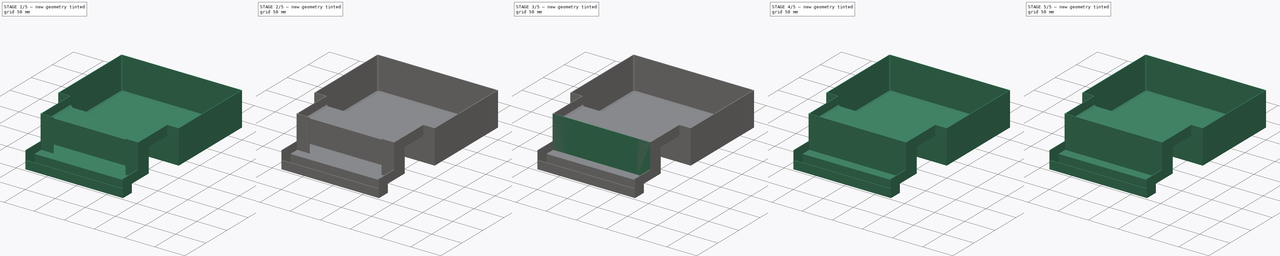
[diagram: build sequence overview — one tinted view per stage of 5, left to right]
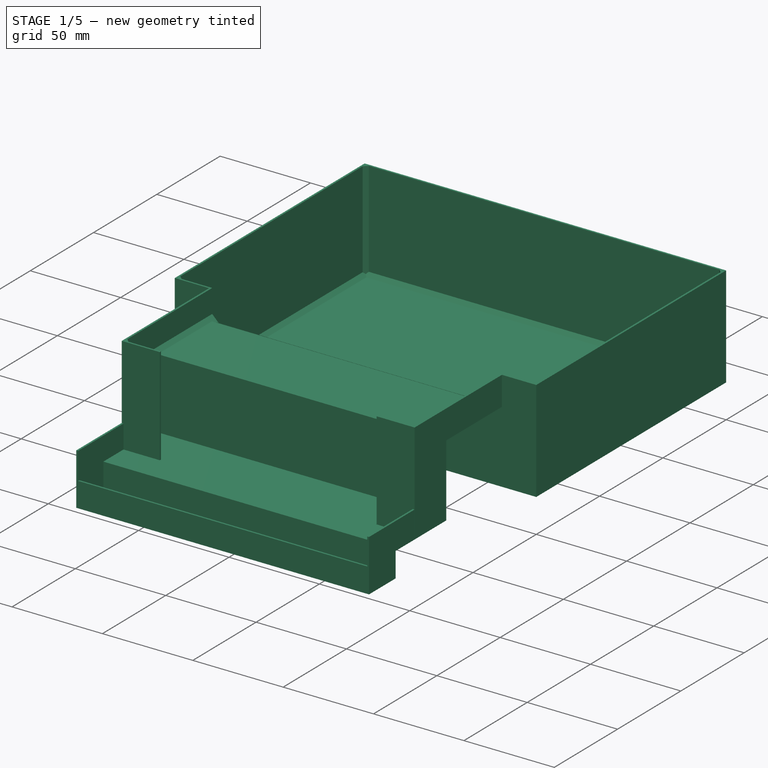
[diagram: stage 1 of 5 — iso view after this stage's code; geometry added in this stage tinted green]
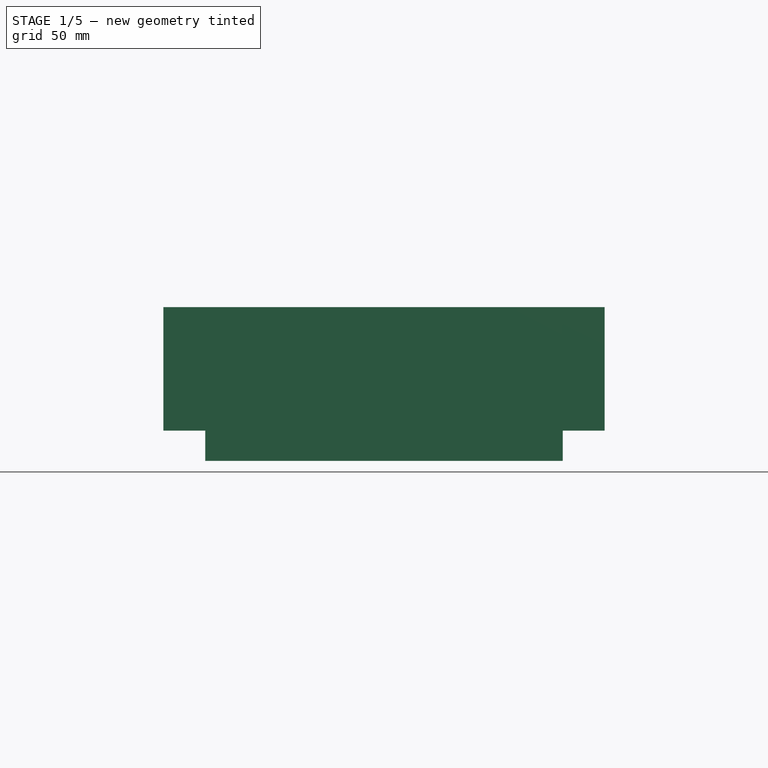
[diagram: stage 1 of 5 — front view after this stage's code; geometry added in this stage tinted green]
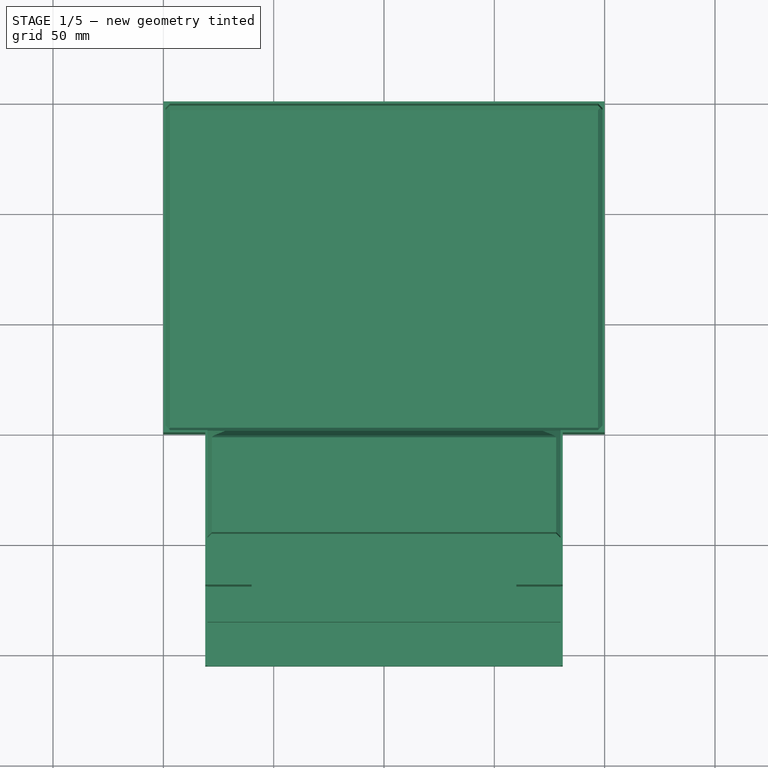
[diagram: stage 1 of 5 — top view after this stage's code; geometry added in this stage tinted green]
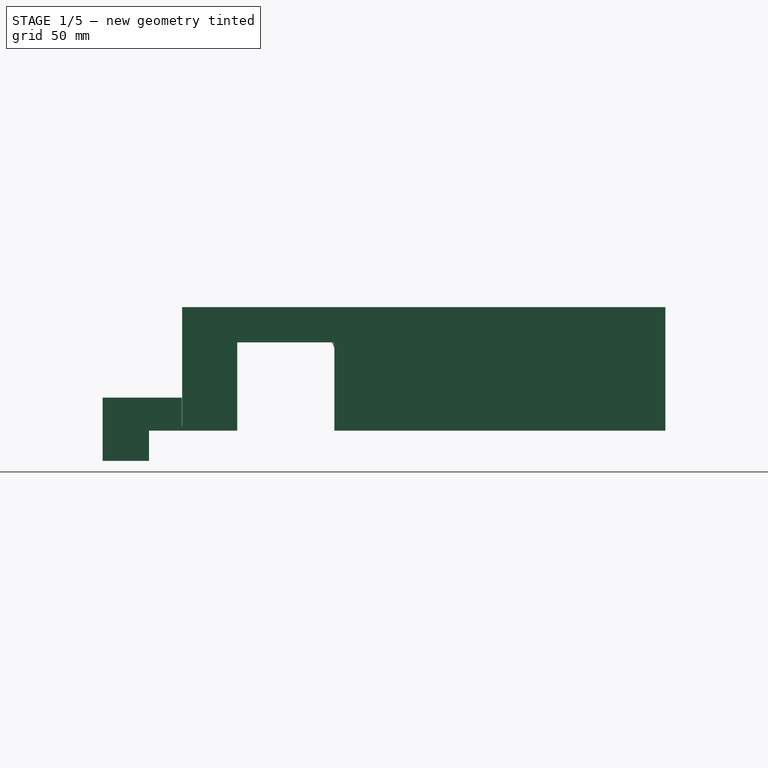
[diagram: stage 1 of 5 — right view after this stage's code; geometry added in this stage tinted green]
FCSTD DOCUMENT  (FreeCAD 0.18R16117 (Git))
Label: gotero
License: CreativeCommons Attribution-ShareAlike
LicenseURL: http://creativecommons.org/licenses/by-sa/4.0/
objects: Part::Box×27, Part::MultiFuse×24, Part::Chamfer×21, Part::Feature×10, Part::Cut×6, Part::Extrusion×3, Sketcher::SketchObject×2, Part::Part2DObjectPython×1
note: 94 computed .brp shape members not serialized (recipe doc carries the construction recipe); baked Part::Feature solids carry a one-line shape summary decoded from their .brp

FEATURE [Part::Box] Box020  label="Cube020"
  AttacherType = Attacher::AttachEngine3D
  Height = 1
  Length = 160
  Placement = pos=(20,-68,1) rot=(0,0,1;0rad)
  Width = 23
FEATURE [Part::Box] Box021  label="Cube021"
  AttacherType = Attacher::AttachEngine3D
  Height = 1
  Length = 159.8
  Placement = pos=(20.1,-67.9,1) rot=(0,0,1;0rad)
  Width = 22.8
FEATURE [Part::Cut] Cut002  label="el_principal"
  Base = -> Chamfer017004001
  Tool = -> Box020
FEATURE [Part::Box] Box022  label="Cube022"
  AttacherType = Attacher::AttachEngine3D
  Height = 1
  Length = 159.8
  Placement = pos=(20.1,-67.9,0) rot=(0,0,1;0rad)
  Width = 22.8
FEATURE [Part::Feature] Cut002001  label="Cut003"
  shape: bbox 200 x 219 x 56 mm, 55 faces (baked)
FEATURE [Part::Cut] Cut002002
  Base = -> Box022
  Tool = -> Cut002001
FEATURE [Part::Box] Box023  label="Cube023"
  AttacherType = Attacher::AttachEngine3D
  Height = 1
  Length = 119.8
  Placement = pos=(40.1,-75,1) rot=(0,0,1;0rad)
  Width = 10
FEATURE [Part::Box] Box024  label="Cube024"
  AttacherType = Attacher::AttachEngine3D
  Height = 1
  Length = 162
  Placement = pos=(19,-85,1) rot=(0,0,1;0rad)
  Width = 15.9
FEATURE [Part::Feature] Fusion005009008001  label="Fusion005009009"
  shape: bbox 162 x 59.9 x 15.7 mm, 27 faces (baked)
FEATURE [Sketcher::SketchObject] Sketch
  ExternalGeometry = -> [Cut002,Fusion005009008001]
  Placement = pos=(0,0,0) rot=(0.57735,0.57735,0.57735;2.0944rad)
  sketch-geometry (6):
    g0: LineSegment StartX=-69.1 StartY=0 StartZ=0 EndX=-84 EndY=0 EndZ=0
    g1: LineSegment StartX=-84 StartY=0 StartZ=0 EndX=-84 EndY=-13.7 EndZ=0
    g2: LineSegment StartX=-84 StartY=-13.7 StartZ=0 EndX=-105 EndY=-13.7 EndZ=0
    g3: LineSegment StartX=-105 StartY=-13.7 StartZ=0 EndX=-105 EndY=15 EndZ=0
    g4: LineSegment StartX=-105 StartY=15 StartZ=0 EndX=-69.1 EndY=15 EndZ=0
    g5: LineSegment StartX=-69.1 StartY=15 StartZ=0 EndX=-69.1 EndY=0 EndZ=0
  constraints (18):
    c: PointOnObject(g0,g-1)
    c: PointOnObject(g0,g-1)
    c: Coincident(g0,g1)
    c: Coincident(g1,g2)
    c: Horizontal(g2)
    c: Coincident(g2,g3)
    c: Vertical(g3)
    c: Coincident(g3,g4)
    c: Horizontal(g4)
    c: Coincident(g4,g5)
    c: Vertical(g5)
    c: Vertical(g1)
    c: Coincident(g0,g5)
    c: DistanceX(g3,g-4) = 1
    c: DistanceY(g2,g-4) = 1
    c: DistanceX(g-4,g1) = 20
    c: DistanceX(g-4,g4) = 34.9
    c: DistanceY(g-4,g4) = 15
FEATURE [Part::Extrusion] Extrude001
  Base = -> Sketch
  Dir = (1,0,0)
  DirMode = 2
  FaceMakerClass = Part::FaceMakerBullseye
  LengthFwd = 1
  LengthRev = 0
  Placement = pos=(19,0,0) rot=(0,0,1;0rad)
  Solid = true
  Symmetric = false
FEATURE [Part::Feature] Chamfer017004002  label="Chamfer017006"
  shape: bbox 200 x 219 x 56 mm, 49 faces (baked)
FEATURE [Part::Feature] Fusion005009008002  label="Fusion005009010"
  shape: bbox 162 x 59.9 x 15.7 mm, 27 faces (baked)
FEATURE [Part::Box] Box025  label="Cube025"
  AttacherType = Attacher::AttachEngine3D
  Height = 1
  Length = 160
  Placement = pos=(20,-68,1) rot=(0,0,1;0rad)
  Width = 23
FEATURE [Part::Cut] Cut002003  label="el_principal_refinado"
  Base = -> Chamfer017004002
  Tool = -> Box025
FEATURE [Sketcher::SketchObject] Sketch001
  ExternalGeometry = -> [Cut002003,Fusion005009008002]
  Placement = pos=(0,0,0) rot=(0.57735,0.57735,0.57735;2.0944rad)
  sketch-geometry (6):
    g0: LineSegment StartX=-69.1 StartY=0 StartZ=0 EndX=-84 EndY=0 EndZ=0
    g1: LineSegment StartX=-84 StartY=0 StartZ=0 EndX=-84 EndY=-13.7 EndZ=0
    g2: LineSegment StartX=-84 StartY=-13.7 StartZ=0 EndX=-105 EndY=-13.7 EndZ=0
    g3: LineSegment StartX=-105 StartY=-13.7 StartZ=0 EndX=-105 EndY=15 EndZ=0
    g4: LineSegment StartX=-105 StartY=15 StartZ=0 EndX=-69.1 EndY=15 EndZ=0
    g5: LineSegment StartX=-69.1 StartY=15 StartZ=0 EndX=-69.1 EndY=0 EndZ=0
  constraints (18):
    c: PointOnObject(g0,g-1)
    c: PointOnObject(g0,g-1)
    c: Coincident(g0,g1)
    c: Coincident(g1,g2)
    c: Horizontal(g2)
    c: Coincident(g2,g3)
    c: Vertical(g3)
    c: Coincident(g3,g4)
    c: Horizontal(g4)
    c: Coincident(g4,g5)
    c: Vertical(g5)
    c: Vertical(g1)
    c: Coincident(g0,g5)
    c: DistanceX(g3,g-4) = 1
    c: DistanceY(g2,g-4) = 1
    c: DistanceX(g-4,g1) = 20
    c: DistanceX(g-4,g4) = 34.9
    c: DistanceY(g-4,g4) = 15
FEATURE [Part::Extrusion] Extrude002
  Base = -> Sketch001
  Dir = (1,0,0)
  DirMode = 2
  FaceMakerClass = Part::FaceMakerBullseye
  LengthFwd = 1
  LengthRev = 0
  Placement = pos=(180,0,0) rot=(0,0,1;0rad)
  Solid = true
  Symmetric = false
FEATURE [Part::MultiFuse] Fusion005009008003
  Shapes = -> [Fusion005009008001,Fusion005009008002]
FEATURE [Part::MultiFuse] Fusion005009008004
  Shapes = -> [Fusion005009008003,Extrude001]
FEATURE [Part::MultiFuse] Fusion005009008005
  Shapes = -> [Fusion005009008004,Extrude002]
FEATURE [Part::Feature] Fusion005009008005001  label="extension_refinado"
  shape: bbox 162 x 59.9 x 28.7 mm, 31 faces (baked)
FEATURE [Part::Box] Box026  label="Cube026"
  AttacherType = Attacher::AttachEngine3D
  Height = 8
  Length = 160
  Placement = pos=(20,-68,1) rot=(0,0,1;0rad)
  Width = 23
FEATURE [Part::Cut] Cut002004
  Base = -> Cut002003
  Tool = -> Box026
FEATURE [Part::Feature] Cut002004001  label="principal_refinado"
  shape: bbox 200 x 219 x 56 mm, 48 faces (baked)
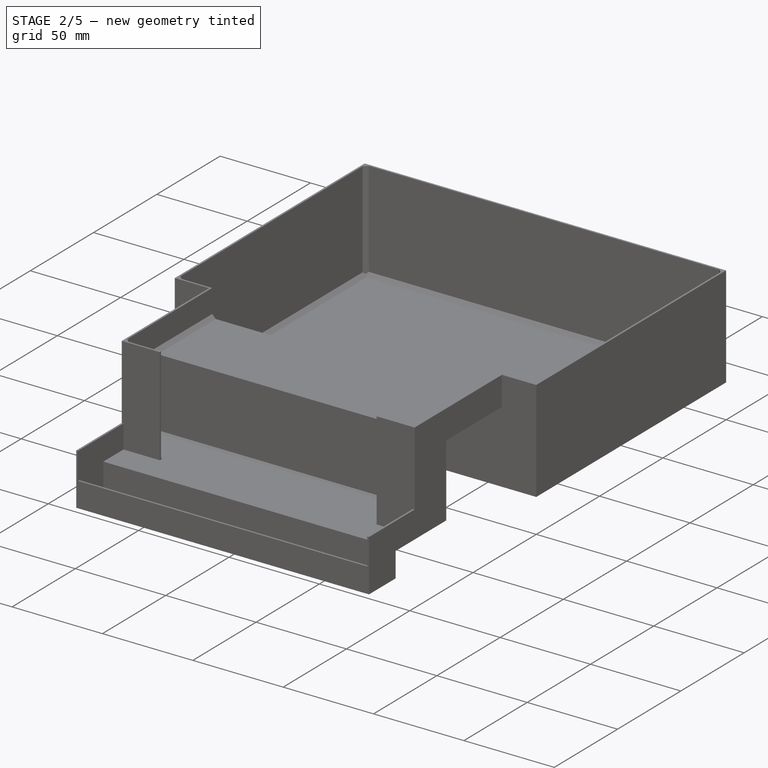
[diagram: stage 2 of 5 — iso view after this stage's code; geometry added in this stage tinted green]
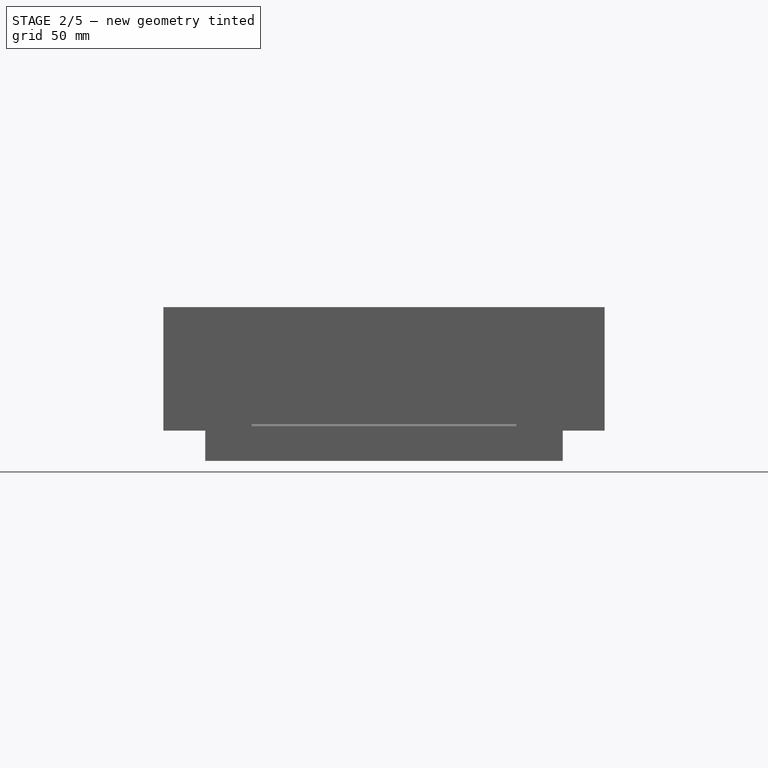
[diagram: stage 2 of 5 — front view after this stage's code; geometry added in this stage tinted green]
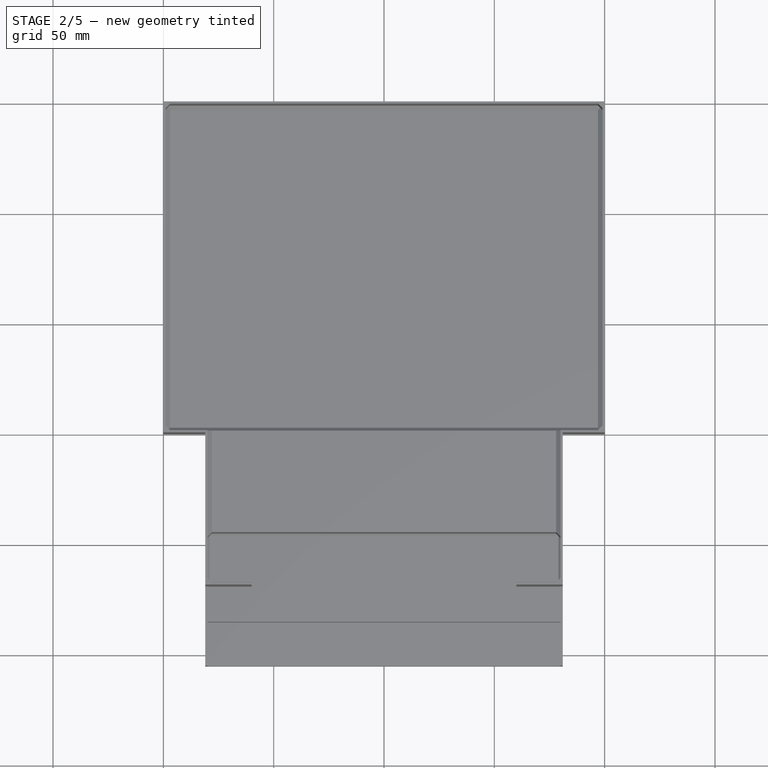
[diagram: stage 2 of 5 — top view after this stage's code; geometry added in this stage tinted green]
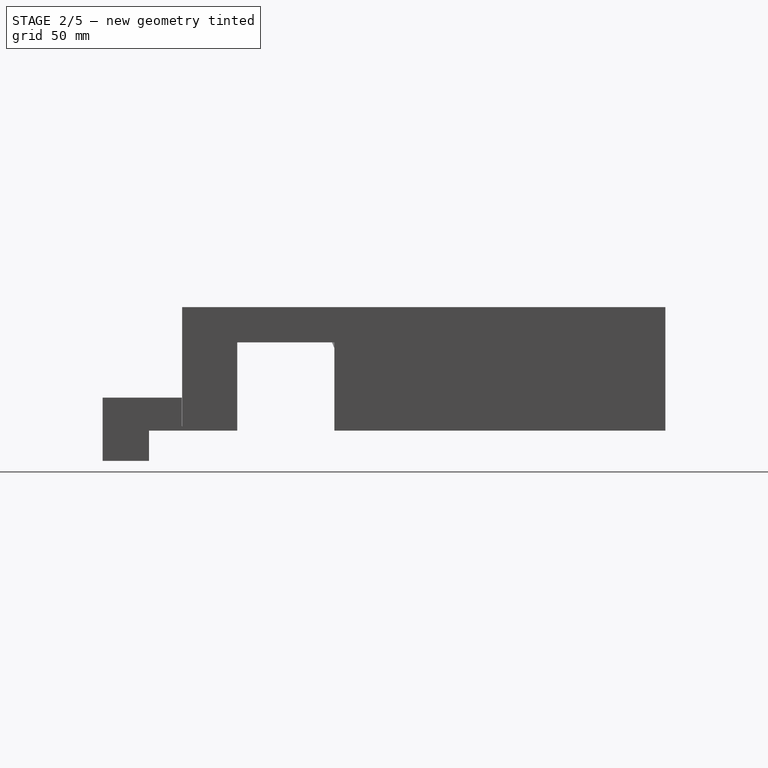
[diagram: stage 2 of 5 — right view after this stage's code; geometry added in this stage tinted green]
FEATURE [Part::Feature] Chamfer017001  label="Chamfer018"
  shape: bbox 200 x 219 x 56 mm, 41 faces (baked)
FEATURE [Part::Part2DObjectPython] Circle  # Draft 2D object (typed FeaturePython)
  FirstAngle = 0
  LastAngle = 0
  MakeFace = true
  Placement = pos=(100,-56.5,0) rot=(0.707107,0.707107,0;3.14159rad)
  Radius = 2
FEATURE [Part::Extrusion] Extrude
  Base = -> Circle
  Dir = (0,0,-1)
  DirMode = 2
  FaceMakerClass = Part::FaceMakerBullseye
  LengthFwd = 10
  LengthRev = 0
  Placement = pos=(0,0,6) rot=(0,0,1;0rad)
  Solid = true
  Symmetric = false
FEATURE [Part::Cut] Cut
  Base = -> Chamfer017001
  Tool = -> Extrude
FEATURE [Part::Chamfer] Chamfer017002
  Base = -> Cut
  Edges = 1 edges r=0.3: [Edge17]
FEATURE [Part::Box] Box015  label="Cube015"
  AttacherType = Attacher::AttachEngine3D
  Height = 65
  Length = 120
  Placement = pos=(40,-79,1) rot=(0,0,1;0rad)
  Width = 20
FEATURE [Part::Cut] Cut001
  Base = -> Chamfer017002
  Tool = -> Box015
FEATURE [Part::Feature] Chamfer017004001  label="Chamfer017005"
  shape: bbox 200 x 219 x 56 mm, 49 faces (baked)
FEATURE [Part::Box] Box016  label="Cube016"
  AttacherType = Attacher::AttachEngine3D
  Height = 1
  Length = 162
  Placement = pos=(19,-85,0) rot=(0,0,1;0rad)
  Width = 16
FEATURE [Part::Box] Box017  label="Cube017"
  AttacherType = Attacher::AttachEngine3D
  Height = 1
  Length = 162
  Placement = pos=(19,-104,-13.7) rot=(0,0,1;0rad)
  Width = 20
FEATURE [Part::Box] Box018  label="Cube018"
  AttacherType = Attacher::AttachEngine3D
  Height = 1
  Length = 162
  Placement = pos=(19,-104,-13.7) rot=(1,0,0;1.5708rad)
  Width = 13.7
FEATURE [Part::Box] Box019  label="Cube019"
  AttacherType = Attacher::AttachEngine3D
  Height = 1
  Length = 162
  Placement = pos=(19,-84,-13.7) rot=(1,0,0;1.5708rad)
  Width = 13.7
FEATURE [Part::MultiFuse] Fusion005009002
  Shapes = -> [Box016,Box019]
FEATURE [Part::MultiFuse] Fusion005009003
  Shapes = -> [Fusion005009002,Box017]
FEATURE [Part::MultiFuse] Fusion005009004
  Shapes = -> [Fusion005009003,Box018]
FEATURE [Part::MultiFuse] Fusion005009005
  Shapes = -> [Box021,Cut002002]
FEATURE [Part::MultiFuse] Fusion005009006
  Shapes = -> [Fusion005009005,Box023]
FEATURE [Part::MultiFuse] Fusion005009007
  Shapes = -> [Fusion005009006,Box024]
FEATURE [Part::MultiFuse] Fusion005009008
  Shapes = -> [Fusion005009004,Fusion005009007]
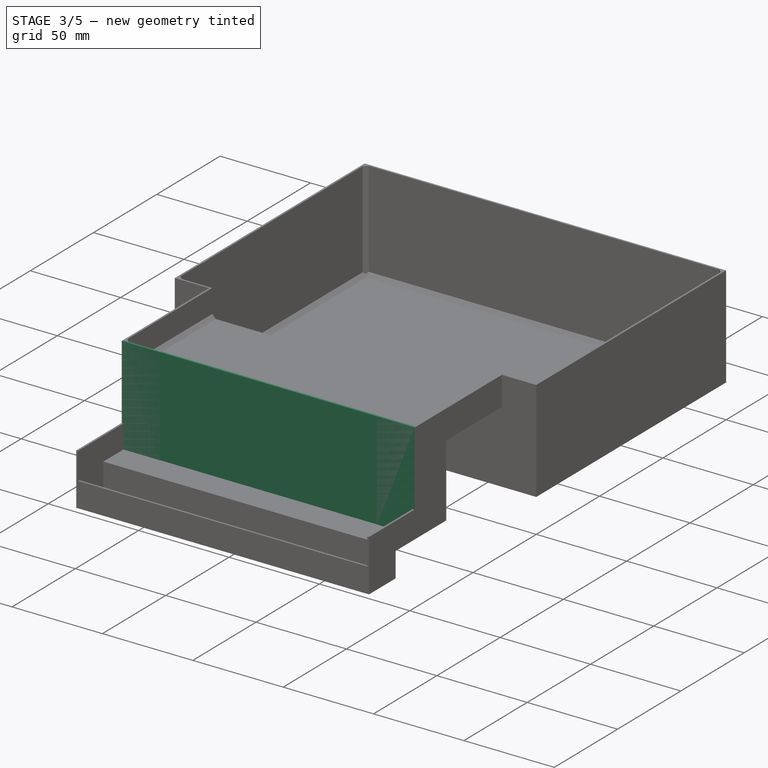
[diagram: stage 3 of 5 — iso view after this stage's code; geometry added in this stage tinted green]
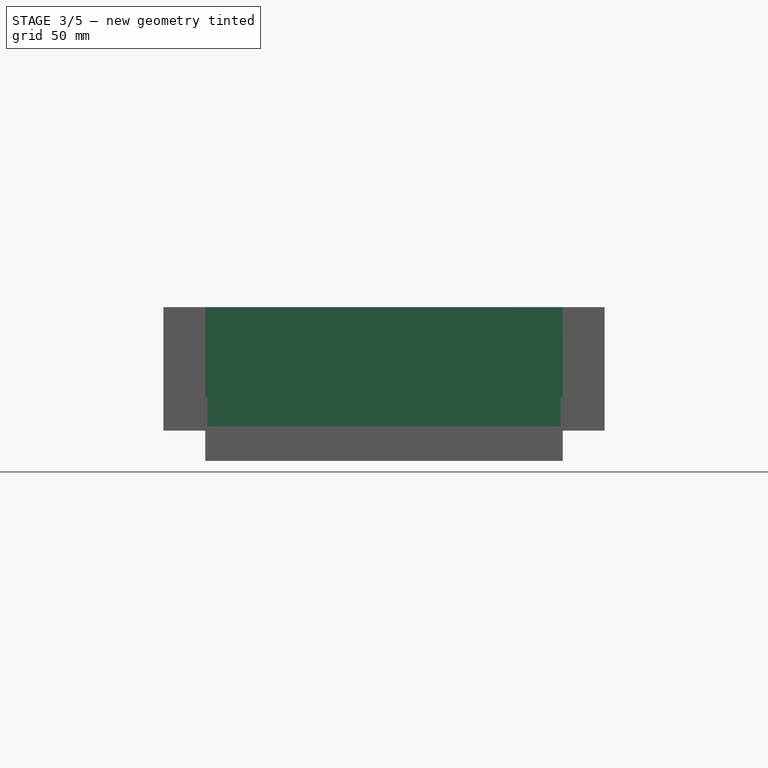
[diagram: stage 3 of 5 — front view after this stage's code; geometry added in this stage tinted green]
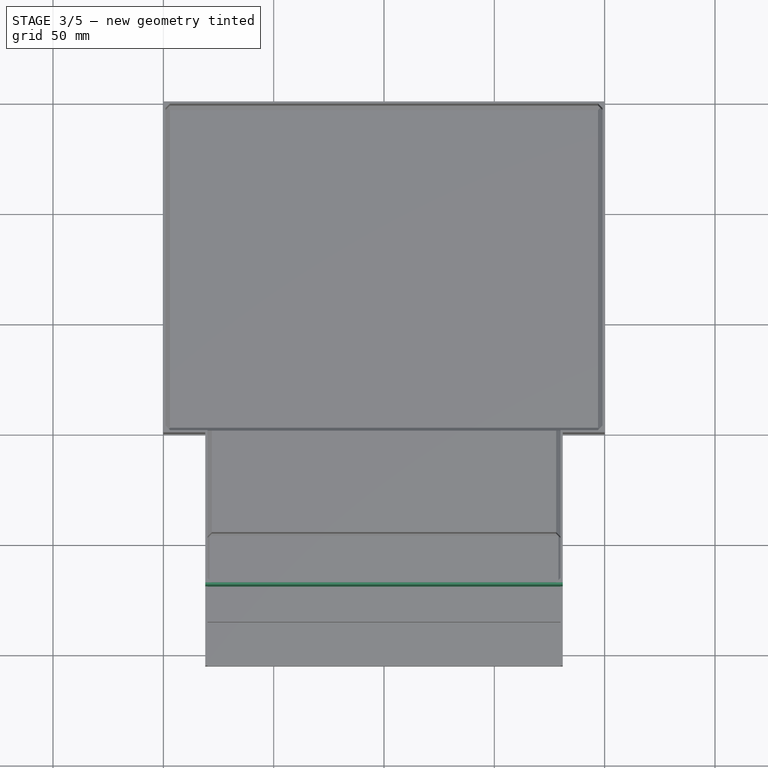
[diagram: stage 3 of 5 — top view after this stage's code; geometry added in this stage tinted green]
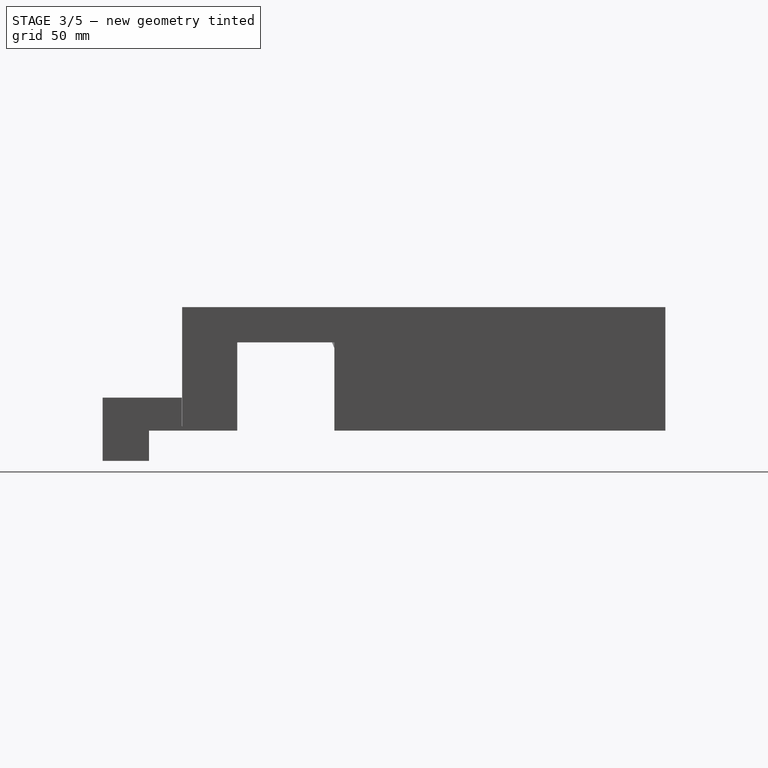
[diagram: stage 3 of 5 — right view after this stage's code; geometry added in this stage tinted green]
FEATURE [Part::Box] Box007  label="Cube007"
  AttacherType = Attacher::AttachEngine3D
  Height = 1
  Length = 162
  Placement = pos=(19,-44,40) rot=(0,0,1;0rad)
  Width = 45
FEATURE [Part::Box] Box008  label="Cube008"
  AttacherType = Attacher::AttachEngine3D
  Height = 41
  Length = 162
  Placement = pos=(19,-45,0) rot=(0,0,1;0rad)
  Width = 1
FEATURE [Part::Box] Box009  label="Cube009"
  AttacherType = Attacher::AttachEngine3D
  Height = 1
  Length = 162
  Placement = pos=(19,-69,0) rot=(0,0,1;0rad)
  Width = 25
FEATURE [Part::MultiFuse] Fusion005002
  Shapes = -> [Box008,Box007]
FEATURE [Part::Box] Box014  label="Cube014"
  AttacherType = Attacher::AttachEngine3D
  Height = 56
  Length = 162
  Placement = pos=(19,-69,0) rot=(0,0,1;0rad)
  Width = 1
FEATURE [Part::Feature] Fusion005009001  label="Fusion005010"
  shape: bbox 200 x 219 x 56 mm, 31 faces (baked)
FEATURE [Part::Chamfer] Chamfer008
  Base = -> Fusion005009001
  Edges = 1 edges r=2: [Edge75]
FEATURE [Part::Chamfer] Chamfer009
  Base = -> Chamfer008
  Edges = 1 edges r=2: [Edge8]
FEATURE [Part::Chamfer] Chamfer010
  Base = -> Chamfer009
  Edges = 1 edges r=2: [Edge18]
FEATURE [Part::Chamfer] Chamfer011
  Base = -> Chamfer010
  Edges = 1 edges r=2: [Edge46]
FEATURE [Part::Chamfer] Chamfer012
  Base = -> Chamfer011
  Edges = 1 edges r=2: [Edge23]
FEATURE [Part::Chamfer] Chamfer013
  Base = -> Chamfer012
  Edges = 1 edges r=2: [Edge32]
FEATURE [Part::Chamfer] Chamfer014
  Base = -> Chamfer013
  Edges = 1 edges r=2: [Edge39]
FEATURE [Part::Chamfer] Chamfer015
  Base = -> Chamfer014
  Edges = 1 edges r=2: [Edge23]
FEATURE [Part::Chamfer] Chamfer016
  Base = -> Chamfer015
  Edges = 1 edges r=2: [Edge20]
FEATURE [Part::Chamfer] Chamfer017
  Base = -> Chamfer016
  Edges = 1 edges r=2: [Edge29]
FEATURE [Part::Chamfer] Chamfer017003
  Base = -> Cut001
  Edges = 1 edges r=3: [Edge84]
FEATURE [Part::Chamfer] Chamfer017004
  Base = -> Chamfer017003
  Edges = 1 edges r=3: [Edge11]
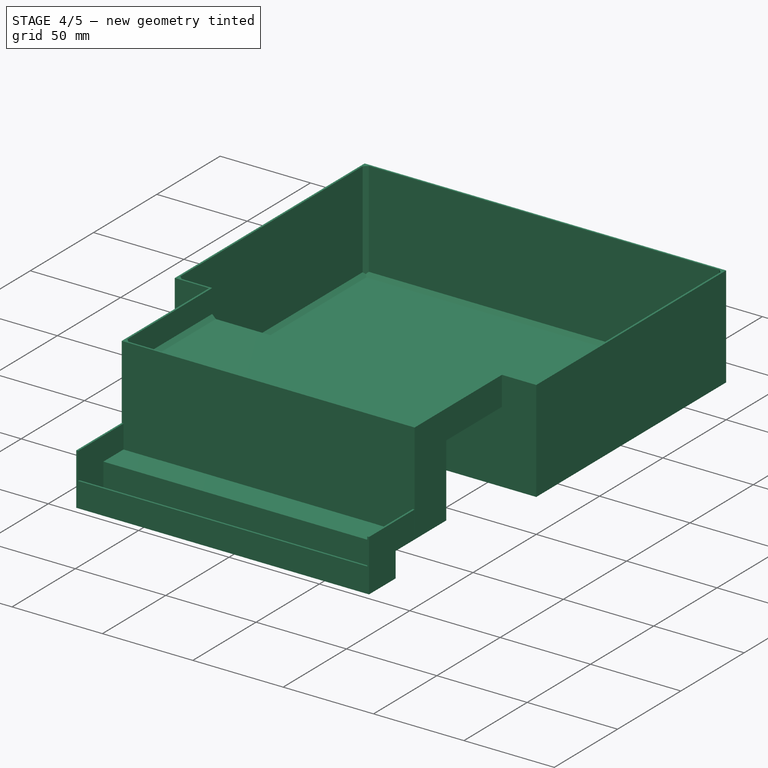
[diagram: stage 4 of 5 — iso view after this stage's code; geometry added in this stage tinted green]
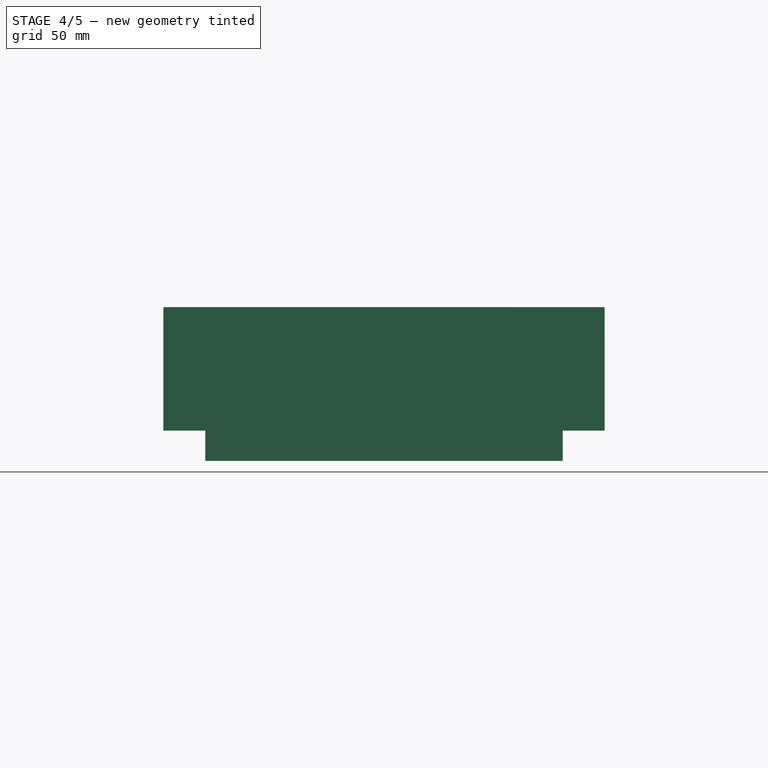
[diagram: stage 4 of 5 — front view after this stage's code; geometry added in this stage tinted green]
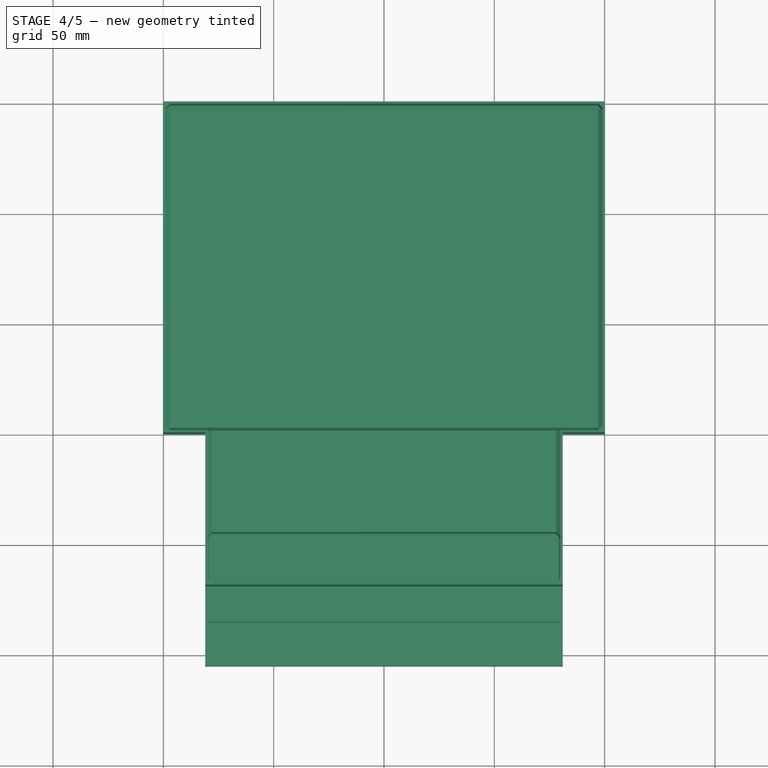
[diagram: stage 4 of 5 — top view after this stage's code; geometry added in this stage tinted green]
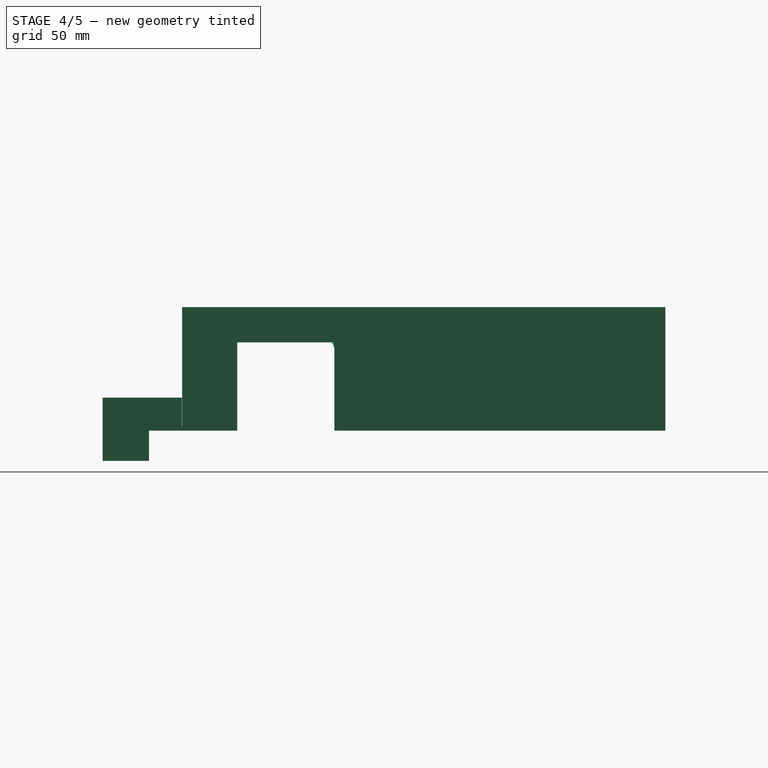
[diagram: stage 4 of 5 — right view after this stage's code; geometry added in this stage tinted green]
FEATURE [Part::Box] Box  label="Cube"
  AttacherType = Attacher::AttachEngine3D
  Height = 1
  Length = 200
  Width = 150
FEATURE [Part::Box] Box003  label="Cube003"
  AttacherType = Attacher::AttachEngine3D
  Height = 56
  Length = 200
  Placement = pos=(0,149,0) rot=(0,0,1;0rad)
  Width = 1
FEATURE [Part::Box] Box006  label="Cube006"
  AttacherType = Attacher::AttachEngine3D
  Height = 56
  Length = 20
  Placement = pos=(180,0,0) rot=(0,0,1;0rad)
  Width = 1
FEATURE [Part::Feature] Fusion005001  label="Fusion006"
  shape: bbox 200 x 150 x 56 mm, 20 faces (baked)
FEATURE [Part::Chamfer] Chamfer006
  Base = -> Fusion005001
  Edges = 1 edges r=2: [Edge9]
FEATURE [Part::Chamfer] Chamfer007
  Base = -> Chamfer006
  Edges = 1 edges r=2: [Edge10]
FEATURE [Part::MultiFuse] Fusion005003
  Shapes = -> [Fusion005002,Box009]
FEATURE [Part::Box] Box010  label="Cube010"
  AttacherType = Attacher::AttachEngine3D
  Height = 56
  Length = 1
  Placement = pos=(19,-69,0) rot=(0,0,1;0rad)
  Width = 25
FEATURE [Part::Box] Box011  label="Cube011"
  AttacherType = Attacher::AttachEngine3D
  Height = 16
  Length = 1
  Placement = pos=(19,-69,40) rot=(0,0,1;0rad)
  Width = 70
FEATURE [Part::MultiFuse] Fusion005004
  Shapes = -> [Box010,Box011]
FEATURE [Part::Box] Box012  label="Cube012"
  AttacherType = Attacher::AttachEngine3D
  Height = 56
  Length = 1
  Placement = pos=(19,-69,0) rot=(0,0,1;0rad)
  Width = 25
FEATURE [Part::Box] Box013  label="Cube013"
  AttacherType = Attacher::AttachEngine3D
  Height = 16
  Length = 1
  Placement = pos=(19,-69,40) rot=(0,0,1;0rad)
  Width = 70
FEATURE [Part::MultiFuse] Fusion005005
  Placement = pos=(161,0,0) rot=(0,0,1;0rad)
  Shapes = -> [Box012,Box013]
FEATURE [Part::MultiFuse] Fusion005006
  Shapes = -> [Chamfer007,Fusion005003]
FEATURE [Part::MultiFuse] Fusion005007
  Shapes = -> [Fusion005006,Fusion005005]
FEATURE [Part::MultiFuse] Fusion005008
  Shapes = -> [Fusion005007,Fusion005004]
FEATURE [Part::MultiFuse] Fusion005009
  Shapes = -> [Fusion005008,Box014]
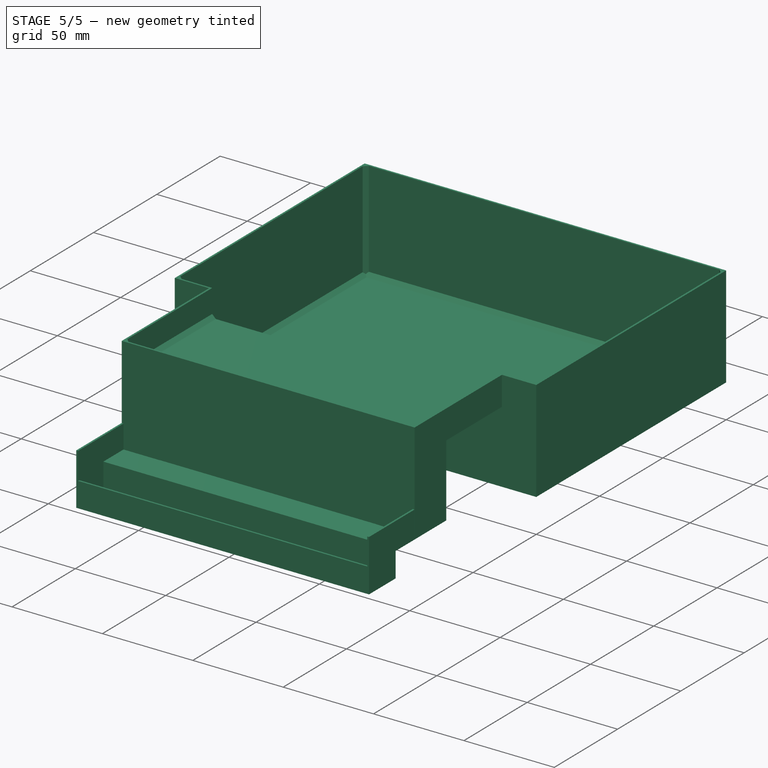
[diagram: stage 5 of 5 — iso view after this stage's code; geometry added in this stage tinted green]
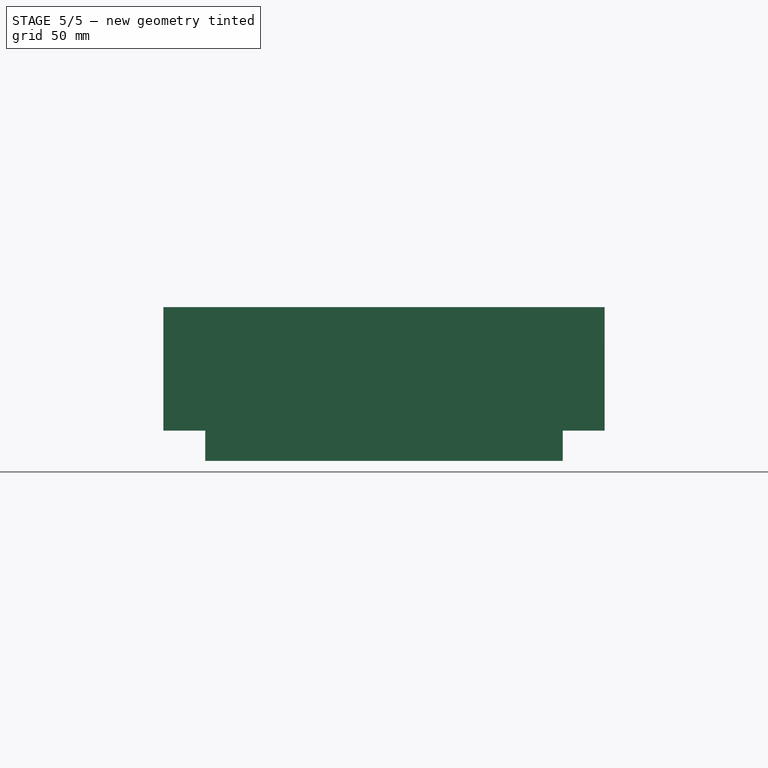
[diagram: stage 5 of 5 — front view after this stage's code; geometry added in this stage tinted green]
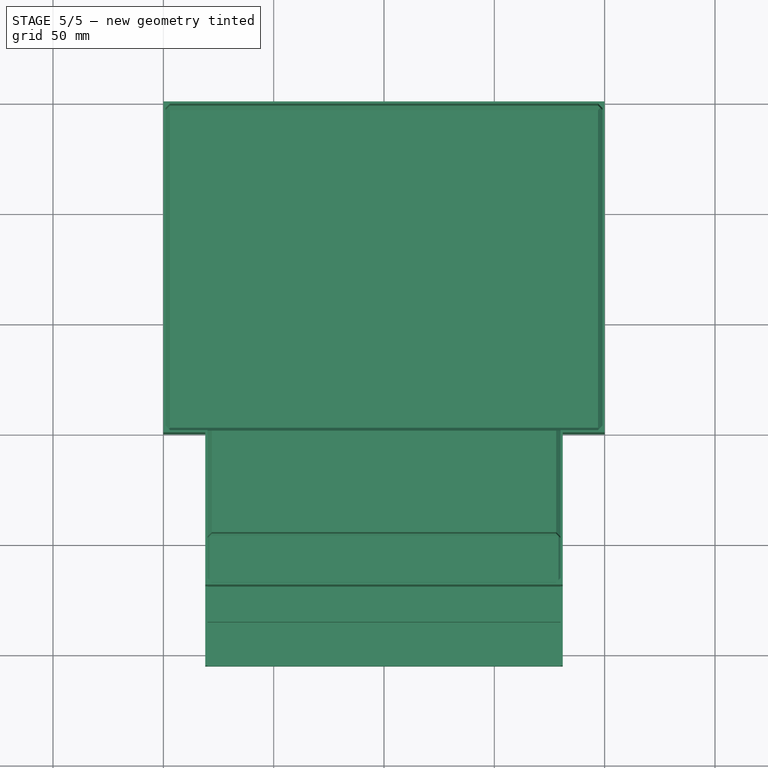
[diagram: stage 5 of 5 — top view after this stage's code; geometry added in this stage tinted green]
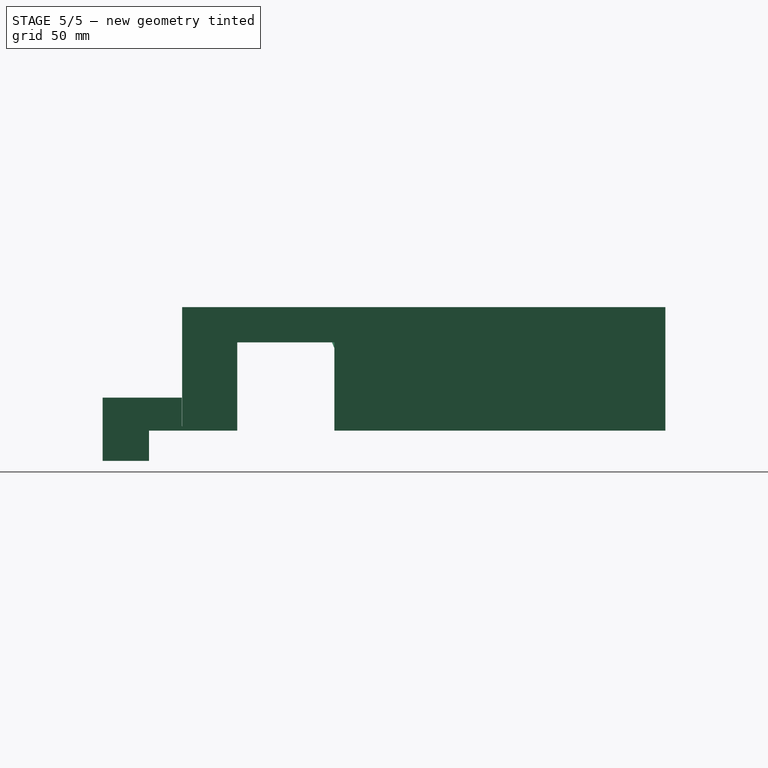
[diagram: stage 5 of 5 — right view after this stage's code; geometry added in this stage tinted green]
FEATURE [Part::Box] Box001  label="Cube001"
  AttacherType = Attacher::AttachEngine3D
  Height = 56
  Length = 1
  Width = 150
FEATURE [Part::Box] Box002  label="Cube002"
  AttacherType = Attacher::AttachEngine3D
  Height = 56
  Length = 1
  Placement = pos=(199,0,0) rot=(0,0,1;0rad)
  Width = 150
FEATURE [Part::Box] Box004  label="Cube004"
  AttacherType = Attacher::AttachEngine3D
  Height = 40
  Length = 200
  Width = 1
FEATURE [Part::MultiFuse] Fusion
  Shapes = -> [Box003,Box]
FEATURE [Part::MultiFuse] Fusion001
  Shapes = -> [Fusion,Box001]
FEATURE [Part::MultiFuse] Fusion002
  Shapes = -> [Fusion001,Box002]
FEATURE [Part::MultiFuse] Fusion003
  Shapes = -> [Fusion002,Box004]
FEATURE [Part::Chamfer] Chamfer
  Base = -> Fusion003
  Edges = 1 edges r=2: [Edge91]
FEATURE [Part::Chamfer] Chamfer001
  Base = -> Chamfer
  Edges = 1 edges r=2: [Edge16]
FEATURE [Part::Chamfer] Chamfer002
  Base = -> Chamfer001
  Edges = 1 edges r=2: [Edge6]
FEATURE [Part::Chamfer] Chamfer003
  Base = -> Chamfer002
  Edges = 1 edges r=2: [Edge14]
FEATURE [Part::Chamfer] Chamfer004
  Base = -> Chamfer003
  Edges = 1 edges r=2: [Edge15]
FEATURE [Part::Chamfer] Chamfer005
  Base = -> Chamfer004
  Edges = 1 edges r=2: [Edge22]
FEATURE [Part::Box] Box005  label="Cube005"
  AttacherType = Attacher::AttachEngine3D
  Height = 56
  Length = 20
  Width = 1
FEATURE [Part::MultiFuse] Fusion004
  Shapes = -> [Chamfer005,Box006]
FEATURE [Part::MultiFuse] Fusion005
  Shapes = -> [Fusion004,Box005]
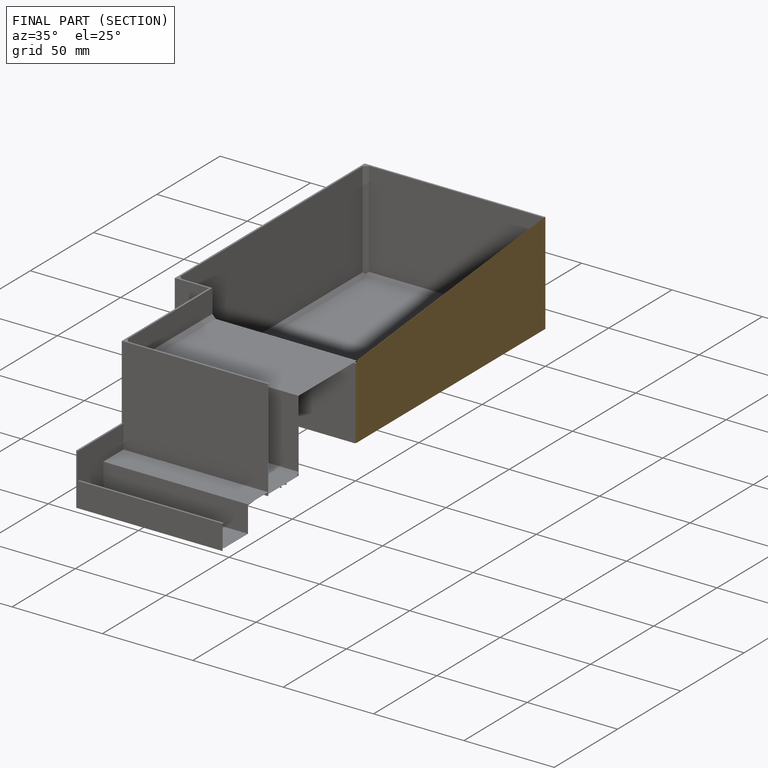
[diagram: finished part — half-section view (interior)]
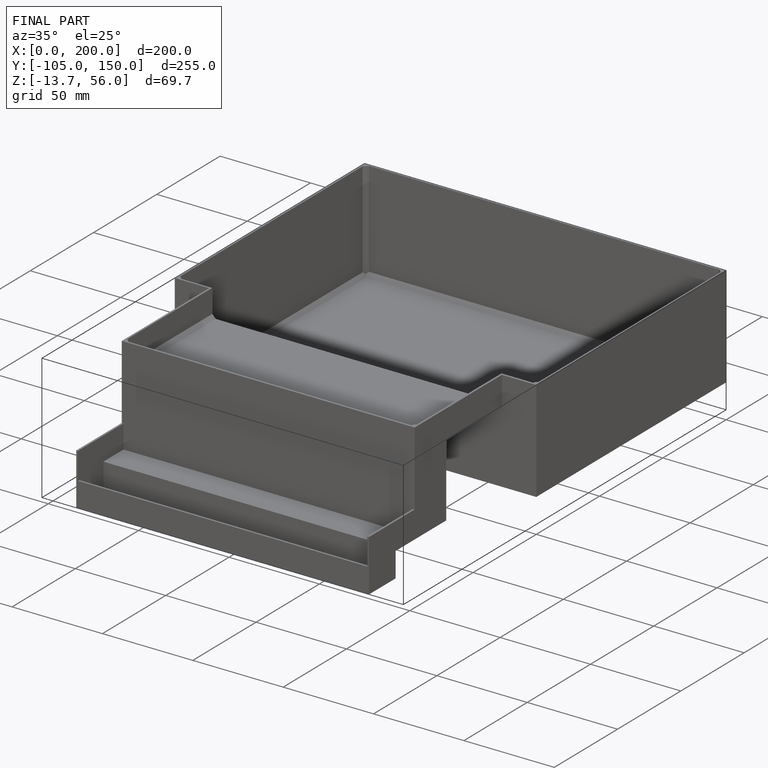
[diagram: finished part — iso view with bounding-box wireframe]
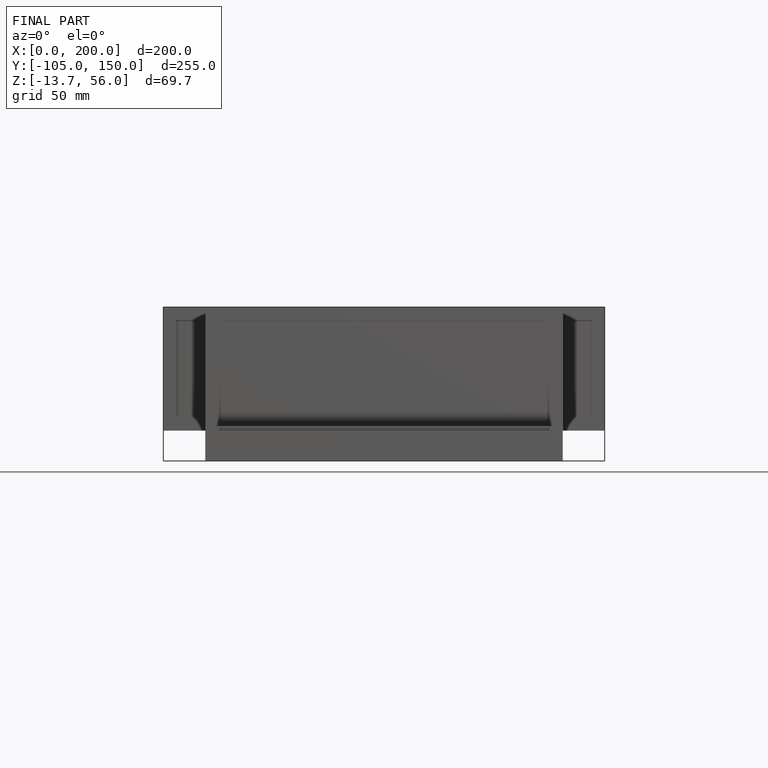
[diagram: finished part — front view with bounding-box wireframe]
